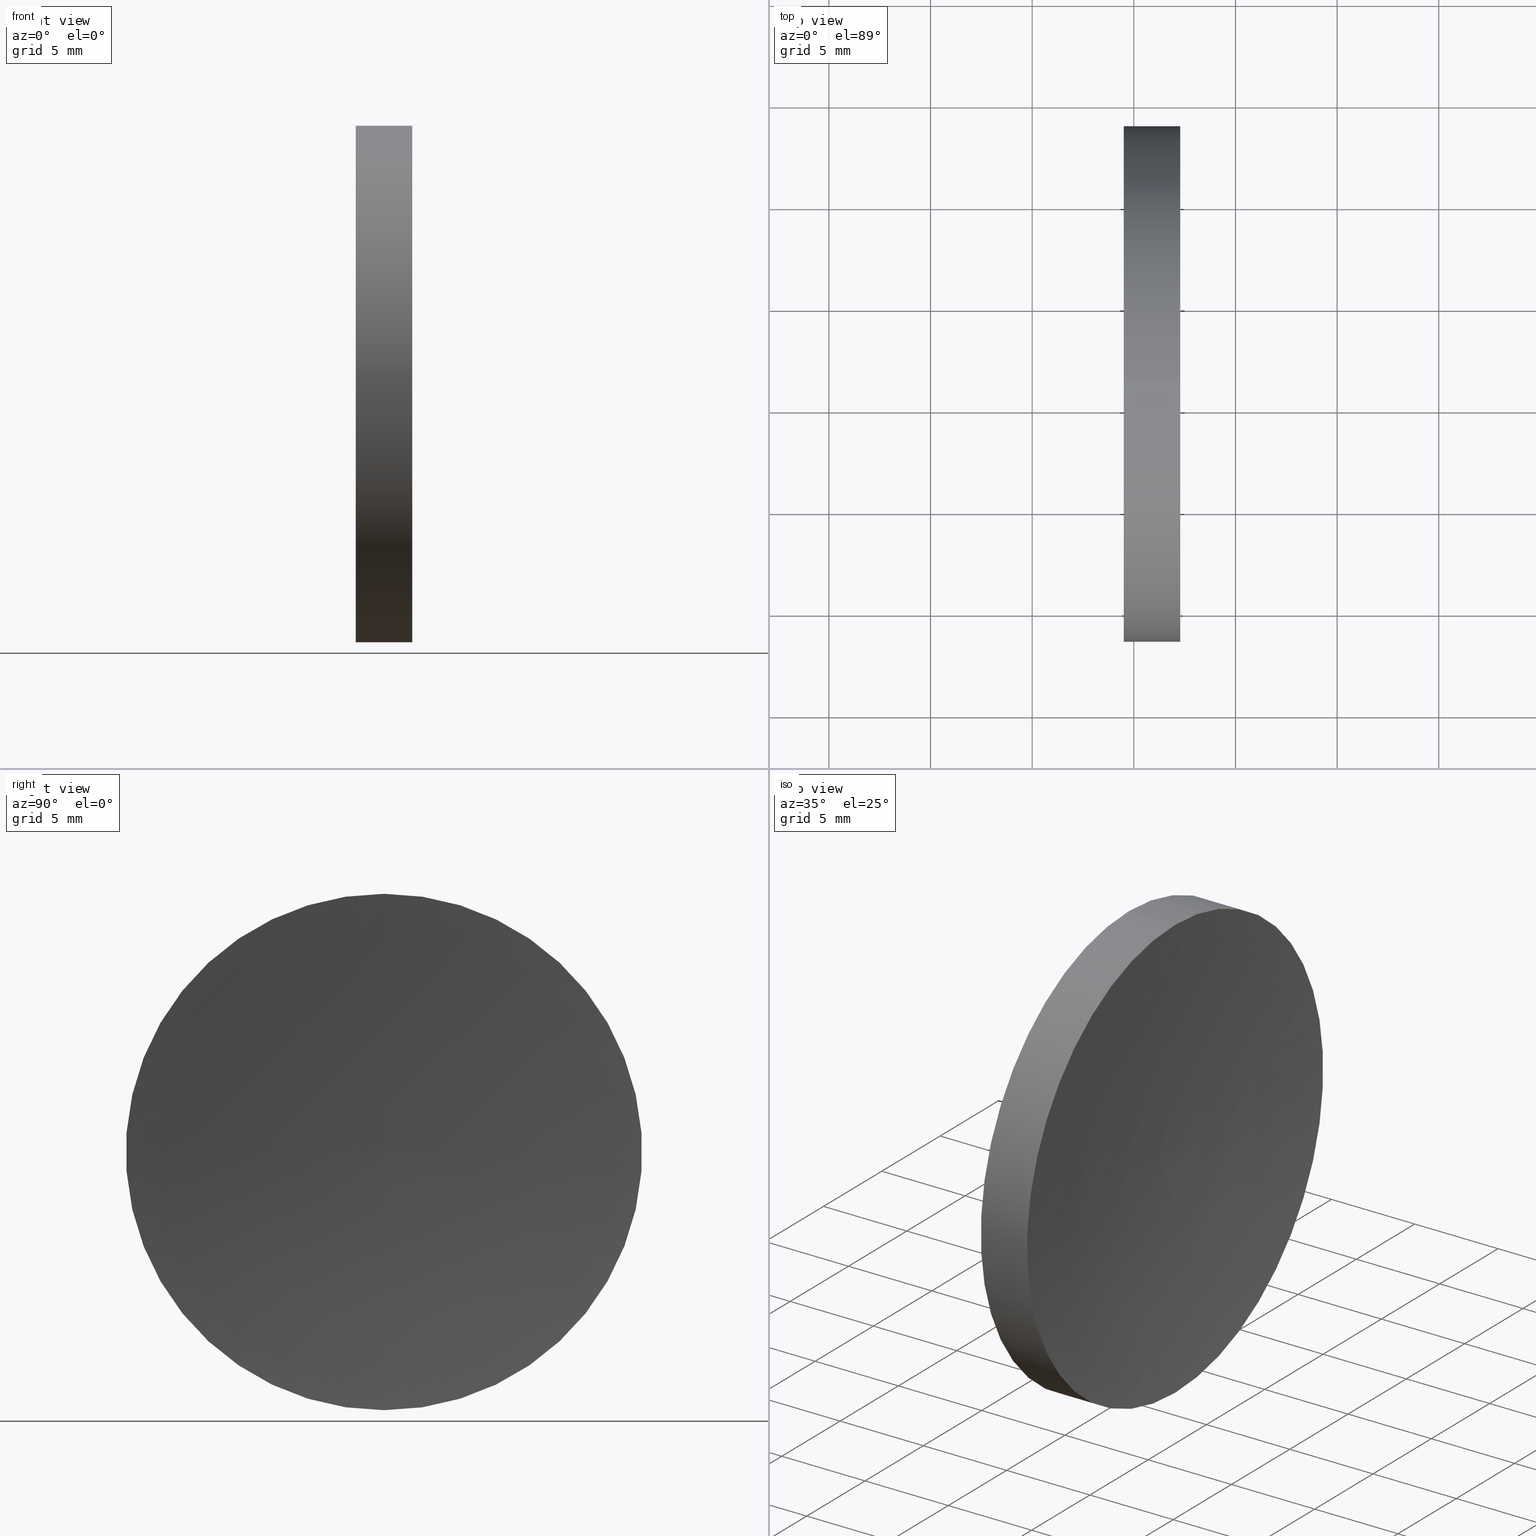
[diagram: canonical four-view strip — front | top / right | iso, engineering-drawing reading convention]
A machine part, canonical four-view strip (front | top / right | iso — engineering-drawing reading convention). The complete STEP part file that produces these views, byte-faithful:
ISO-10303-21;
HEADER;
FILE_DESCRIPTION (( 'STEP AP214' ),
    '1' );
FILE_NAME ('120322.STEP',
    '2019-06-27T02:25:30',
    ( '' ),
    ( '' ),
    'SwSTEP 2.0',
    'SolidWorks 2016',
    '' );
FILE_SCHEMA (( 'AUTOMOTIVE_DESIGN' ));
ENDSEC;

DATA;
#1 = DIRECTION ( 'NONE',  ( 0.0000000000000000000, 0.0000000000000000000, -1.000000000000000000 ) ) ;
#2 = CARTESIAN_POINT ( 'NONE',  ( 226.7068266378696800, 71.19398908659370300, 0.0000000000000000000 ) ) ;
#3 = CARTESIAN_POINT ( 'NONE',  ( 111.9552297575605700, 71.19398908659370300, 0.0000000000000000000 ) ) ;
#4 = PRODUCT_DEFINITION_SHAPE ( 'NONE', 'NONE',  #31 ) ;
#5 = EDGE_CURVE ( 'NONE', #131, #114, #148, .T. ) ;
#6 = ORIENTED_EDGE ( 'NONE', *, *, #164, .T. ) ;
#7 = STYLED_ITEM ( 'NONE', ( #43 ), #87 ) ;
#8 = DIRECTION ( 'NONE',  ( -1.000000000000000000, -0.0000000000000000000, -0.0000000000000000000 ) ) ;
#9 = DIRECTION ( 'NONE',  ( 0.0000000000000000000, -1.319181350552676200E-016, 1.000000000000000000 ) ) ;
#10 = FILL_AREA_STYLE ('',( #17 ) ) ;
#11 = CIRCLE ( 'NONE', #162, 12.70000000000000300 ) ;
#12 = EDGE_CURVE ( 'NONE', #114, #44, #48, .T. ) ;
#13 = ORIENTED_EDGE ( 'NONE', *, *, #157, .T. ) ;
#14 = DIRECTION ( 'NONE',  ( 0.0000000000000000000, 0.0000000000000000000, 1.000000000000000000 ) ) ;
#15 = ORIENTED_EDGE ( 'NONE', *, *, #137, .F. ) ;
#16 = FACE_OUTER_BOUND ( 'NONE', #61, .T. ) ;
#17 = FILL_AREA_STYLE_COLOUR ( '', #91 ) ;
#18 = APPLICATION_CONTEXT ( 'automotive_design' ) ;
#19 = PRESENTATION_LAYER_ASSIGNMENT (  '', '', ( #7 ) ) ;
#20 = LINE ( 'NONE', #127, #103 ) ;
#21 = ADVANCED_FACE ( 'NONE', ( #138 ), #136, .F. ) ;
#22 = FILL_AREA_STYLE ('',( #84 ) ) ;
#23 = ADVANCED_FACE ( 'NONE', ( #16 ), #65, .F. ) ;
#24 = DIRECTION ( 'NONE',  ( 0.0000000000000000000, 0.0000000000000000000, 1.000000000000000000 ) ) ;
#25 = MECHANICAL_DESIGN_GEOMETRIC_PRESENTATION_REPRESENTATION (  '', ( #7 ), #129 ) ;
#26 = DIRECTION ( 'NONE',  ( 0.0000000000000000000, 0.0000000000000000000, 1.000000000000000000 ) ) ;
#27 =( NAMED_UNIT ( * ) PLANE_ANGLE_UNIT ( ) SI_UNIT ( $, .RADIAN. ) );
#28 = ORIENTED_EDGE ( 'NONE', *, *, #45, .F. ) ;
#29 = DIRECTION ( 'NONE',  ( -1.000000000000000000, -0.0000000000000000000, -0.0000000000000000000 ) ) ;
#30 = CARTESIAN_POINT ( 'NONE',  ( 111.9552297575605700, 71.19398908659370300, -12.70000000000000300 ) ) ;
#31 = PRODUCT_DEFINITION ( 'δ֪', '', #101, #97 ) ;
#32 = CIRCLE ( 'NONE', #98, 12.70000000000000300 ) ;
#33 = SURFACE_STYLE_USAGE ( .BOTH. , #155 ) ;
#34 = VERTEX_POINT ( 'NONE', #122 ) ;
#35 = DIRECTION ( 'NONE',  ( 0.0000000000000000000, 0.0000000000000000000, 1.000000000000000000 ) ) ;
#36 = APPLICATION_PROTOCOL_DEFINITION ( 'draft international standard', 'automotive_design', 1998, #117 ) ;
#37 = APPLICATION_PROTOCOL_DEFINITION ( 'draft international standard', 'automotive_design', 1998, #18 ) ;
#38 = UNCERTAINTY_MEASURE_WITH_UNIT (LENGTH_MEASURE( 1.000000000000000100E-005 ), #133, 'distance_accuracy_value', 'NONE');
#39 = EDGE_LOOP ( 'NONE', ( #74, #120, #28, #94 ) ) ;
#40 = CLOSED_SHELL ( 'NONE', ( #67, #88, #23, #125, #21 ) ) ;
#41 = ORIENTED_EDGE ( 'NONE', *, *, #5, .F. ) ;
#42 = DIRECTION ( 'NONE',  ( 0.0000000000000000000, 0.0000000000000000000, 1.000000000000000000 ) ) ;
#43 = PRESENTATION_STYLE_ASSIGNMENT (( #63 ) ) ;
#44 = VERTEX_POINT ( 'NONE', #165 ) ;
#45 = EDGE_CURVE ( 'NONE', #34, #44, #11, .T. ) ;
#46 = CARTESIAN_POINT ( 'NONE',  ( 121.5068341785476800, 71.19398908659370300, 0.0000000000000000000 ) ) ;
#47 = CYLINDRICAL_SURFACE ( 'NONE', #86, 12.70000000000000300 ) ;
#48 = LINE ( 'NONE', #30, #145 ) ;
#49 = CARTESIAN_POINT ( 'NONE',  ( 226.7068266378696800, 71.19398908659370300, -0.03983163417291268900 ) ) ;
#50 =( NAMED_UNIT ( * ) SI_UNIT ( $, .STERADIAN. ) SOLID_ANGLE_UNIT ( ) );
#51 = PRODUCT_CONTEXT ( 'NONE', #117, 'mechanical' ) ;
#52 = CYLINDRICAL_SURFACE ( 'NONE', #106, 12.70000000000000300 ) ;
#53 = EDGE_LOOP ( 'NONE', ( #82, #163, #73 ) ) ;
#54 = PRODUCT_RELATED_PRODUCT_CATEGORY ( 'part', '', ( #141 ) ) ;
#55 = AXIS2_PLACEMENT_3D ( 'NONE', #109, #96, #42 ) ;
#56 = DIRECTION ( 'NONE',  ( 0.0000000000000000000, 0.0000000000000000000, 1.000000000000000000 ) ) ;
#57 = CARTESIAN_POINT ( 'NONE',  ( 119.5068341785477100, 71.19398908659370300, 0.0000000000000000000 ) ) ;
#58 = ORIENTED_EDGE ( 'NONE', *, *, #45, .T. ) ;
#59 = CARTESIAN_POINT ( 'NONE',  ( 122.2810793820639900, 71.19398908659370300, 0.0000000000000000000 ) ) ;
#60 = SURFACE_STYLE_FILL_AREA ( #22 ) ;
#61 = EDGE_LOOP ( 'NONE', ( #110, #41, #89 ) ) ;
#62 = AXIS2_PLACEMENT_3D ( 'NONE', #57, #152, #1 ) ;
#63 = SURFACE_STYLE_USAGE ( .BOTH. , #105 ) ;
#64 = AXIS2_PLACEMENT_3D ( 'NONE', #128, #76, #90 ) ;
#65 = TOROIDAL_SURFACE ( 'NONE', #116, -0.03983163417291268900, 105.2000000000022900 ) ;
#66 = DIRECTION ( 'NONE',  ( -1.000000000000000000, -0.0000000000000000000, -0.0000000000000000000 ) ) ;
#67 = ADVANCED_FACE ( 'NONE', ( #166 ), #47, .T. ) ;
#68 =( NAMED_UNIT ( * ) PLANE_ANGLE_UNIT ( ) SI_UNIT ( $, .RADIAN. ) );
#69 =( GEOMETRIC_REPRESENTATION_CONTEXT ( 3 ) GLOBAL_UNCERTAINTY_ASSIGNED_CONTEXT ( ( #119 ) ) GLOBAL_UNIT_ASSIGNED_CONTEXT ( ( #158, #68, #71 ) ) REPRESENTATION_CONTEXT ( 'NONE', 'WORKASPACE' ) );
#70 = CARTESIAN_POINT ( 'NONE',  ( 122.2810793820639900, 71.19398908659370300, 12.70000000000004700 ) ) ;
#71 =( NAMED_UNIT ( * ) SI_UNIT ( $, .STERADIAN. ) SOLID_ANGLE_UNIT ( ) );
#72 = FACE_OUTER_BOUND ( 'NONE', #53, .T. ) ;
#73 = ORIENTED_EDGE ( 'NONE', *, *, #149, .F. ) ;
#74 = ORIENTED_EDGE ( 'NONE', *, *, #5, .T. ) ;
#75 = DIRECTION ( 'NONE',  ( -1.000000000000000000, -0.0000000000000000000, -0.0000000000000000000 ) ) ;
#76 = DIRECTION ( 'NONE',  ( 0.0000000000000000000, 0.0000000000000000000, 1.000000000000000000 ) ) ;
#77 = MECHANICAL_DESIGN_GEOMETRIC_PRESENTATION_REPRESENTATION (  '', ( #95 ), #69 ) ;
#78 = SURFACE_STYLE_FILL_AREA ( #10 ) ;
#79 = AXIS2_PLACEMENT_3D ( 'NONE', #2, #66, #83 ) ;
#80 = EDGE_LOOP ( 'NONE', ( #58, #107 ) ) ;
#81 = CARTESIAN_POINT ( 'NONE',  ( 111.9552297575605700, 71.19398908659370300, 0.0000000000000000000 ) ) ;
#82 = ORIENTED_EDGE ( 'NONE', *, *, #164, .F. ) ;
#83 = DIRECTION ( 'NONE',  ( 0.0000000000000000000, 0.0000000000000000000, 1.000000000000000000 ) ) ;
#84 = FILL_AREA_STYLE_COLOUR ( '', #118 ) ;
#85 = CIRCLE ( 'NONE', #121, 105.2000000000022900 ) ;
#86 = AXIS2_PLACEMENT_3D ( 'NONE', #81, #135, #14 ) ;
#87 = ADVANCED_BREP_SHAPE_REPRESENTATION ( '120322', ( #100, #64 ), #153 ) ;
#88 = ADVANCED_FACE ( 'NONE', ( #72 ), #147, .F. ) ;
#89 = ORIENTED_EDGE ( 'NONE', *, *, #149, .T. ) ;
#90 = DIRECTION ( 'NONE',  ( 1.000000000000000000, 0.0000000000000000000, 0.0000000000000000000 ) ) ;
#91 = COLOUR_RGB ( '',1.000000000000000000, 1.000000000000000000, 1.000000000000000000 ) ;
#92 = PRESENTATION_STYLE_ASSIGNMENT (( #33 ) ) ;
#93 = FACE_OUTER_BOUND ( 'NONE', #124, .T. ) ;
#94 = ORIENTED_EDGE ( 'NONE', *, *, #157, .F. ) ;
#95 = STYLED_ITEM ( 'NONE', ( #92 ), #100 ) ;
#96 = DIRECTION ( 'NONE',  ( -1.000000000000000000, -0.0000000000000000000, -0.0000000000000000000 ) ) ;
#97 = PRODUCT_DEFINITION_CONTEXT ( 'detailed design', #18, 'design' ) ;
#98 = AXIS2_PLACEMENT_3D ( 'NONE', #132, #159, #24 ) ;
#99 = DIRECTION ( 'NONE',  ( -1.000000000000000000, -0.0000000000000000000, -0.0000000000000000000 ) ) ;
#100 = MANIFOLD_SOLID_BREP ( '��ת1', #40 ) ;
#101 = PRODUCT_DEFINITION_FORMATION_WITH_SPECIFIED_SOURCE ( '�κ�', '', #141, .NOT_KNOWN. ) ;
#102 = DIRECTION ( 'NONE',  ( -0.0000000000000000000, 1.000000000000000000, 1.224646799147353200E-016 ) ) ;
#103 = VECTOR ( 'NONE', #8, 1000.000000000000000 ) ;
#104 = VERTEX_POINT ( 'NONE', #46 ) ;
#105 = SURFACE_SIDE_STYLE ('',( #78 ) ) ;
#106 = AXIS2_PLACEMENT_3D ( 'NONE', #3, #156, #126 ) ;
#107 = ORIENTED_EDGE ( 'NONE', *, *, #137, .T. ) ;
#108 = CARTESIAN_POINT ( 'NONE',  ( 226.7068266378696800, 71.19398908659370300, 0.0000000000000000000 ) ) ;
#109 = CARTESIAN_POINT ( 'NONE',  ( 122.2810793820639900, 71.19398908659370300, 0.0000000000000000000 ) ) ;
#110 = ORIENTED_EDGE ( 'NONE', *, *, #146, .F. ) ;
#111 = AXIS2_PLACEMENT_3D ( 'NONE', #113, #102, #9 ) ;
#112 =( NAMED_UNIT ( * ) PLANE_ANGLE_UNIT ( ) SI_UNIT ( $, .RADIAN. ) );
#113 = CARTESIAN_POINT ( 'NONE',  ( 226.7068266378696800, 71.19398908659370300, 0.03983163417291268900 ) ) ;
#114 = VERTEX_POINT ( 'NONE', #139 ) ;
#115 =( LENGTH_UNIT ( ) NAMED_UNIT ( * ) SI_UNIT ( .MILLI., .METRE. ) );
#116 = AXIS2_PLACEMENT_3D ( 'NONE', #108, #151, #56 ) ;
#117 = APPLICATION_CONTEXT ( 'automotive_design' ) ;
#118 = COLOUR_RGB ( '',1.000000000000000000, 1.000000000000000000, 1.000000000000000000 ) ;
#119 = UNCERTAINTY_MEASURE_WITH_UNIT (LENGTH_MEASURE( 1.000000000000000100E-005 ), #158, 'distance_accuracy_value', 'NONE');
#120 = ORIENTED_EDGE ( 'NONE', *, *, #12, .T. ) ;
#121 = AXIS2_PLACEMENT_3D ( 'NONE', #49, #143, #160 ) ;
#122 = CARTESIAN_POINT ( 'NONE',  ( 119.5068341785477100, 71.19398908659370300, 12.70000000000000300 ) ) ;
#123 = UNCERTAINTY_MEASURE_WITH_UNIT (LENGTH_MEASURE( 1.000000000000000100E-005 ), #115, 'distance_accuracy_value', 'NONE');
#124 = EDGE_LOOP ( 'NONE', ( #142, #6, #13, #15 ) ) ;
#125 = ADVANCED_FACE ( 'NONE', ( #93 ), #52, .T. ) ;
#126 = DIRECTION ( 'NONE',  ( 0.0000000000000000000, 0.0000000000000000000, 1.000000000000000000 ) ) ;
#127 = CARTESIAN_POINT ( 'NONE',  ( 111.9552297575605700, 71.19398908659370300, 12.70000000000000300 ) ) ;
#128 = CARTESIAN_POINT ( 'NONE',  ( 0.0000000000000000000, 0.0000000000000000000, 0.0000000000000000000 ) ) ;
#129 =( GEOMETRIC_REPRESENTATION_CONTEXT ( 3 ) GLOBAL_UNCERTAINTY_ASSIGNED_CONTEXT ( ( #123 ) ) GLOBAL_UNIT_ASSIGNED_CONTEXT ( ( #115, #27, #134 ) ) REPRESENTATION_CONTEXT ( 'NONE', 'WORKASPACE' ) );
#130 = CIRCLE ( 'NONE', #111, 105.2000000000022900 ) ;
#131 = VERTEX_POINT ( 'NONE', #70 ) ;
#132 = CARTESIAN_POINT ( 'NONE',  ( 119.5068341785477100, 71.19398908659370300, 0.0000000000000000000 ) ) ;
#133 =( LENGTH_UNIT ( ) NAMED_UNIT ( * ) SI_UNIT ( .MILLI., .METRE. ) );
#134 =( NAMED_UNIT ( * ) SI_UNIT ( $, .STERADIAN. ) SOLID_ANGLE_UNIT ( ) );
#135 = DIRECTION ( 'NONE',  ( -1.000000000000000000, -0.0000000000000000000, -0.0000000000000000000 ) ) ;
#136 = PLANE ( 'NONE',  #62 ) ;
#137 = EDGE_CURVE ( 'NONE', #44, #34, #32, .T. ) ;
#138 = FACE_OUTER_BOUND ( 'NONE', #80, .T. ) ;
#139 = CARTESIAN_POINT ( 'NONE',  ( 122.2810793820639900, 71.19398908659370300, -12.70000000000004700 ) ) ;
#140 = AXIS2_PLACEMENT_3D ( 'NONE', #59, #75, #26 ) ;
#141 = PRODUCT ( '120322', '120322', '', ( #51 ) ) ;
#142 = ORIENTED_EDGE ( 'NONE', *, *, #12, .F. ) ;
#143 = DIRECTION ( 'NONE',  ( 0.0000000000000000000, -1.000000000000000000, 0.0000000000000000000 ) ) ;
#144 = PRESENTATION_LAYER_ASSIGNMENT (  '', '', ( #95 ) ) ;
#145 = VECTOR ( 'NONE', #29, 1000.000000000000000 ) ;
#146 = EDGE_CURVE ( 'NONE', #114, #104, #130, .T. ) ;
#147 = TOROIDAL_SURFACE ( 'NONE', #79, -0.03983163417291268900, 105.2000000000022900 ) ;
#148 = CIRCLE ( 'NONE', #55, 12.70000000000000300 ) ;
#149 = EDGE_CURVE ( 'NONE', #131, #104, #85, .T. ) ;
#150 = CARTESIAN_POINT ( 'NONE',  ( 119.5068341785477100, 71.19398908659370300, 0.0000000000000000000 ) ) ;
#151 = DIRECTION ( 'NONE',  ( -1.000000000000000000, -0.0000000000000000000, -0.0000000000000000000 ) ) ;
#152 = DIRECTION ( 'NONE',  ( 1.000000000000000000, 0.0000000000000000000, 0.0000000000000000000 ) ) ;
#153 =( GEOMETRIC_REPRESENTATION_CONTEXT ( 3 ) GLOBAL_UNCERTAINTY_ASSIGNED_CONTEXT ( ( #38 ) ) GLOBAL_UNIT_ASSIGNED_CONTEXT ( ( #133, #112, #50 ) ) REPRESENTATION_CONTEXT ( 'NONE', 'WORKASPACE' ) );
#154 = SHAPE_DEFINITION_REPRESENTATION ( #4, #87 ) ;
#155 = SURFACE_SIDE_STYLE ('',( #60 ) ) ;
#156 = DIRECTION ( 'NONE',  ( -1.000000000000000000, -0.0000000000000000000, -0.0000000000000000000 ) ) ;
#157 = EDGE_CURVE ( 'NONE', #131, #34, #20, .T. ) ;
#158 =( LENGTH_UNIT ( ) NAMED_UNIT ( * ) SI_UNIT ( .MILLI., .METRE. ) );
#159 = DIRECTION ( 'NONE',  ( -1.000000000000000000, -0.0000000000000000000, -0.0000000000000000000 ) ) ;
#160 = DIRECTION ( 'NONE',  ( 0.0000000000000000000, 0.0000000000000000000, -1.000000000000000000 ) ) ;
#161 = CIRCLE ( 'NONE', #140, 12.70000000000000300 ) ;
#162 = AXIS2_PLACEMENT_3D ( 'NONE', #150, #99, #35 ) ;
#163 = ORIENTED_EDGE ( 'NONE', *, *, #146, .T. ) ;
#164 = EDGE_CURVE ( 'NONE', #114, #131, #161, .T. ) ;
#165 = CARTESIAN_POINT ( 'NONE',  ( 119.5068341785477100, 71.19398908659370300, -12.70000000000000300 ) ) ;
#166 = FACE_OUTER_BOUND ( 'NONE', #39, .T. ) ;
ENDSEC;
END-ISO-10303-21;
